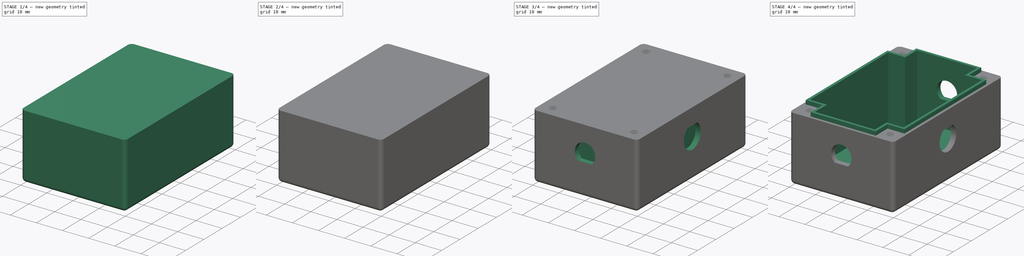
[diagram: build sequence overview — one tinted view per stage of 4, left to right]
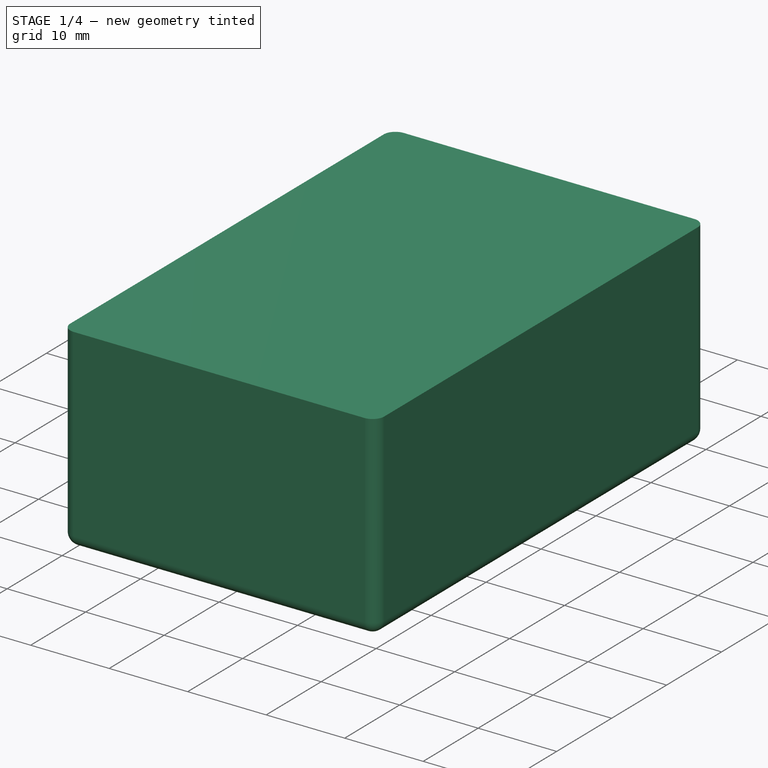
[diagram: stage 1 of 4 — iso view after this stage's code; geometry added in this stage tinted green]
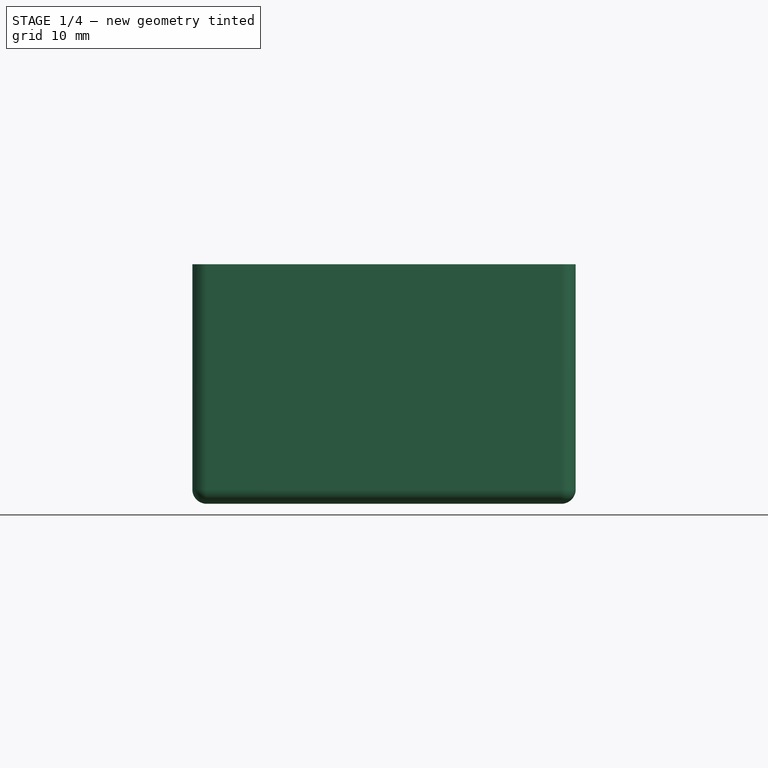
[diagram: stage 1 of 4 — front view after this stage's code; geometry added in this stage tinted green]
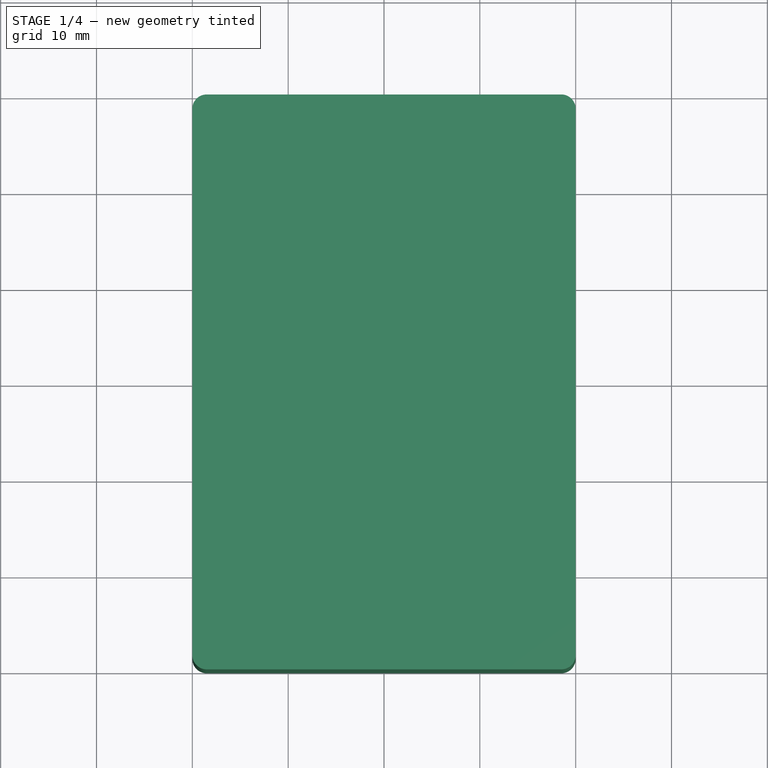
[diagram: stage 1 of 4 — top view after this stage's code; geometry added in this stage tinted green]
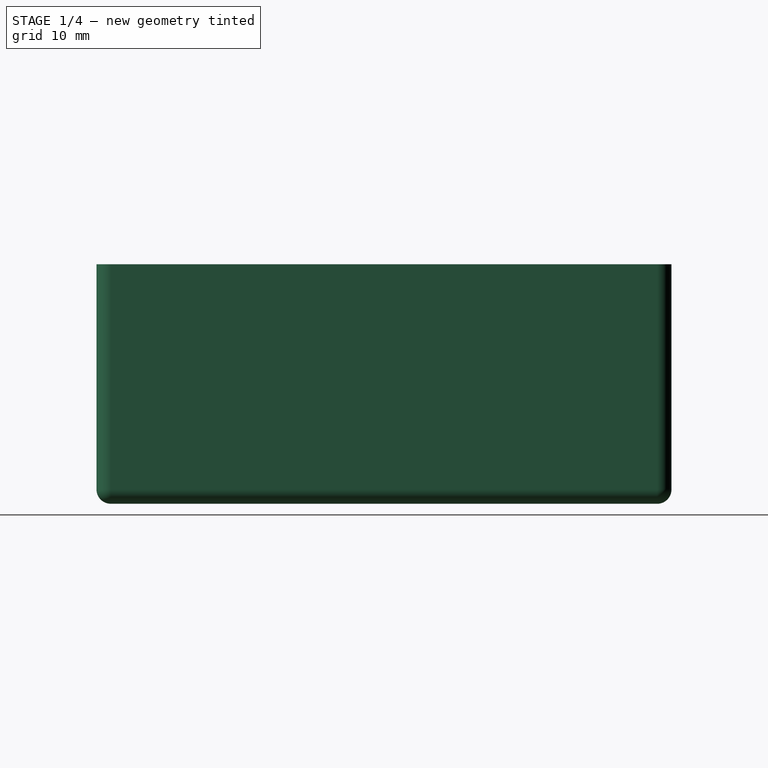
[diagram: stage 1 of 4 — right view after this stage's code; geometry added in this stage tinted green]
FCSTD DOCUMENT  (FreeCAD 0.18R16131 (Git))
Label: QRPDoubletAntennaBody
License: All rights reserved
LicenseURL: http://en.wikipedia.org/wiki/All_rights_reserved
objects: Sketcher::SketchObject×15, Part::FeaturePython×4, PartDesign::Pocket×4, PartDesign::Pad×2, PartDesign::Fillet×1, PartDesign::Boolean×1, PartDesign::Body×1
note: 34 computed .brp shape members not serialized (recipe doc carries the construction recipe); baked Part::Feature solids carry a one-line shape summary decoded from their .brp

FEATURE [Sketcher::SketchObject] CopySketch002
  Placement = pos=(0,0,30) rot=(0,0,1;0rad)
  sketch-geometry (13):
    g0: LineSegment StartX=-13.5 StartY=29 StartZ=0 EndX=13.5 EndY=29 EndZ=0
    g1: LineSegment StartX=19 StartY=23.5 StartZ=0 EndX=19 EndY=-23.5 EndZ=0
    g2: LineSegment StartX=13.5 StartY=-29 StartZ=0 EndX=-13.5 EndY=-29 EndZ=0
    g3: LineSegment StartX=-19 StartY=-23.5 StartZ=0 EndX=-19 EndY=23.5 EndZ=0
    g4: Circle [constr] CenterX=16.5 CenterY=26.5 CenterZ=0 NormalX=0 NormalY=0 NormalZ=1 AngleXU=0 Radius=1.8
    g5: LineSegment StartX=13.5 StartY=29 StartZ=0 EndX=13.5 EndY=23.5 EndZ=0
    g6: LineSegment StartX=13.5 StartY=23.5 StartZ=0 EndX=19 EndY=23.5 EndZ=0
    g7: LineSegment StartX=19 StartY=-23.5 StartZ=0 EndX=13.5 EndY=-23.5 EndZ=0
    g8: LineSegment StartX=13.5 StartY=-23.5 StartZ=0 EndX=13.5 EndY=-29 EndZ=0
    g9: LineSegment StartX=-13.5 StartY=-29 StartZ=0 EndX=-13.5 EndY=-23.5 EndZ=0
    g10: LineSegment StartX=-13.5 StartY=-23.5 StartZ=0 EndX=-19 EndY=-23.5 EndZ=0
    g11: LineSegment StartX=-19 StartY=23.5 StartZ=0 EndX=-13.5 EndY=23.5 EndZ=0
    g12: LineSegment StartX=-13.5 StartY=23.5 StartZ=0 EndX=-13.5 EndY=29 EndZ=0
  constraints (28):
    c: Diameter(g4) = 3.6
    c: Symmetric(g0,g2,g-1)
    c: Symmetric(g3,g1,g-2)
    c: Symmetric(g3,g1,g-2)
    c: Symmetric(g0,g2,g-1)
    c: Symmetric(g0,g0,g-2)
    c: Symmetric(g3,g3,g-1)
    c: Coincident(g0,g5)
    c: Coincident(g5,g6)
    c: Coincident(g6,g1)
    c: Coincident(g1,g7)
    c: Horizontal(g7)
    c: Coincident(g7,g8)
    c: Coincident(g8,g2)
    c: Coincident(g2,g9)
    c: Vertical(g9)
    c: Coincident(g9,g10)
    c: Coincident(g10,g3)
    c: Coincident(g3,g11)
    c: Coincident(g11,g12)
    c: Coincident(g12,g0)
    c: Horizontal(g10)
    c: Horizontal(g6)
    c: Vertical(g5)
    c: Vertical(g12)
    c: Horizontal(g11)
    c: Equal(g10,g9)
    c: Equal(g8,g7)
FEATURE [Sketcher::SketchObject] Sketch003  label="Body Sketch"
  MapMode = 5
  Support = -> [XY_Plane]
  sketch-geometry (4):
    g0: LineSegment StartX=-20 StartY=30 StartZ=0 EndX=20 EndY=30 EndZ=0
    g1: LineSegment StartX=20 StartY=30 StartZ=0 EndX=20 EndY=-30 EndZ=0
    g2: LineSegment StartX=20 StartY=-30 StartZ=0 EndX=-20 EndY=-30 EndZ=0
    g3: LineSegment StartX=-20 StartY=-30 StartZ=0 EndX=-20 EndY=30 EndZ=0
  constraints (10):
    c: Coincident(g0,g1)
    c: Coincident(g1,g2)
    c: Coincident(g2,g3)
    c: Coincident(g3,g0)
    c: Horizontal(g2)
    c: Vertical(g1)
    c: Symmetric(g0,g0,g-2)
    c: Symmetric(g0,g2,g-1)
    c: DistanceX(g-2,g0) = -20
    c: DistanceY(g-1,g2) = -30
FEATURE [Sketcher::SketchObject] CopySketch003  label="Main Body Sketch"
  sketch-geometry (4):
    g0: LineSegment StartX=-20 StartY=30 StartZ=0 EndX=20 EndY=30 EndZ=0
    g1: LineSegment StartX=20 StartY=30 StartZ=0 EndX=20 EndY=-30 EndZ=0
    g2: LineSegment StartX=20 StartY=-30 StartZ=0 EndX=-20 EndY=-30 EndZ=0
    g3: LineSegment StartX=-20 StartY=-30 StartZ=0 EndX=-20 EndY=30 EndZ=0
  constraints (10):
    c: Coincident(g0,g1)
    c: Coincident(g1,g2)
    c: Coincident(g2,g3)
    c: Coincident(g3,g0)
    c: Horizontal(g2)
    c: Vertical(g1)
    c: Symmetric(g0,g0,g-2)
    c: Symmetric(g0,g2,g-1)
    c: DistanceX(g-2,g0) = -20
    c: DistanceY(g-1,g2) = -30
FEATURE [PartDesign::Pad] Pad  label="Main Body"
  Length = 25
  Length2 = 100
  Profile = -> CopySketch003
  Type = 0
FEATURE [PartDesign::Fillet] Fillet
  Base = -> Pad [Face5,Edge2,Edge5,Edge8,Edge1]
  BaseFeature = -> Pad
  Radius = 1.5
FEATURE [Sketcher::SketchObject] CopySketch002001  label="CopySketch003"
  ExternalGeometry = -> [Sketch003]
  Placement = pos=(0,0,30) rot=(0,0,1;0rad)
  sketch-geometry (13):
    g0: LineSegment StartX=-13.5 StartY=29 StartZ=0 EndX=13.5 EndY=29 EndZ=0
    g1: LineSegment StartX=19 StartY=23.5 StartZ=0 EndX=19 EndY=-23.5 EndZ=0
    g2: LineSegment StartX=13.5 StartY=-29 StartZ=0 EndX=-13.5 EndY=-29 EndZ=0
    g3: LineSegment StartX=-19 StartY=-23.5 StartZ=0 EndX=-19 EndY=23.5 EndZ=0
    g4: Circle [constr] CenterX=15.5 CenterY=25.5 CenterZ=0 NormalX=0 NormalY=0 NormalZ=1 AngleXU=0 Radius=1.8
    g5: LineSegment StartX=13.5 StartY=29 StartZ=0 EndX=13.5 EndY=23.5 EndZ=0
    g6: LineSegment StartX=13.5 StartY=23.5 StartZ=0 EndX=19 EndY=23.5 EndZ=0
    g7: LineSegment StartX=19 StartY=-23.5 StartZ=0 EndX=13.5 EndY=-23.5 EndZ=0
    g8: LineSegment StartX=13.5 StartY=-23.5 StartZ=0 EndX=13.5 EndY=-29 EndZ=0
    g9: LineSegment StartX=-13.5 StartY=-29 StartZ=0 EndX=-13.5 EndY=-23.5 EndZ=0
    g10: LineSegment StartX=-13.5 StartY=-23.5 StartZ=0 EndX=-19 EndY=-23.5 EndZ=0
    g11: LineSegment StartX=-19 StartY=23.5 StartZ=0 EndX=-13.5 EndY=23.5 EndZ=0
    g12: LineSegment StartX=-13.5 StartY=23.5 StartZ=0 EndX=-13.5 EndY=29 EndZ=0
  constraints (33):
    c: Diameter(g4) = 3.6
    c: Symmetric(g0,g2,g-1)
    c: Symmetric(g3,g1,g-2)
    c: Symmetric(g3,g1,g-2)
    c: Symmetric(g0,g2,g-1)
    c: Symmetric(g0,g0,g-2)
    c: Symmetric(g3,g3,g-1)
    c: Coincident(g0,g5)
    c: Coincident(g5,g6)
    c: Coincident(g6,g1)
    c: Coincident(g1,g7)
    c: Horizontal(g7)
    c: Coincident(g7,g8)
    c: Coincident(g8,g2)
    c: Coincident(g2,g9)
    c: Vertical(g9)
    c: Coincident(g9,g10)
    c: Coincident(g10,g3)
    c: Coincident(g3,g11)
    c: Coincident(g11,g12)
    c: Coincident(g12,g0)
    c: Horizontal(g10)
    c: Horizontal(g6)
    c: Vertical(g5)
    c: Vertical(g12)
    c: Horizontal(g11)
    c: Equal(g10,g9)
    c: Equal(g8,g7)
    c: Distance(g9,g-3) = 6.5
    c: Distance(g9,g-4) = 6.5
    c: Distance(g4,g-5) = 4.5
    c: Distance(g4,g-6) = 4.5
    c: Distance(g3,g9) = 5.5
FEATURE [Sketcher::SketchObject] CopySketch004
  Placement = pos=(0,0,31.5) rot=(0,0,1;0rad)
  sketch-geometry (13):
    g0: LineSegment StartX=-12.5 StartY=28 StartZ=0 EndX=12.5 EndY=28 EndZ=0
    g1: LineSegment StartX=18 StartY=22.5 StartZ=0 EndX=18 EndY=-22.5 EndZ=0
    g2: LineSegment StartX=12.5 StartY=-28 StartZ=0 EndX=-12.5 EndY=-28 EndZ=0
    g3: LineSegment StartX=-18 StartY=-22.5 StartZ=0 EndX=-18 EndY=22.5 EndZ=0
    g4: Circle [constr] CenterX=16.5 CenterY=26.5 CenterZ=0 NormalX=0 NormalY=0 NormalZ=1 AngleXU=0 Radius=1.8
    g5: LineSegment StartX=12.5 StartY=28 StartZ=0 EndX=12.5 EndY=22.5 EndZ=0
    g6: LineSegment StartX=12.5 StartY=22.5 StartZ=0 EndX=18 EndY=22.5 EndZ=0
    g7: LineSegment StartX=18 StartY=-22.5 StartZ=0 EndX=12.5 EndY=-22.5 EndZ=0
    g8: LineSegment StartX=12.5 StartY=-22.5 StartZ=0 EndX=12.5 EndY=-28 EndZ=0
    g9: LineSegment StartX=-12.5 StartY=-28 StartZ=0 EndX=-12.5 EndY=-22.5 EndZ=0
    g10: LineSegment StartX=-12.5 StartY=-22.5 StartZ=0 EndX=-18 EndY=-22.5 EndZ=0
    g11: LineSegment StartX=-18 StartY=22.5 StartZ=0 EndX=-12.5 EndY=22.5 EndZ=0
    g12: LineSegment StartX=-12.5 StartY=22.5 StartZ=0 EndX=-12.5 EndY=28 EndZ=0
  constraints (28):
    c: Diameter(g4) = 3.6
    c: Symmetric(g0,g2,g-1)
    c: Symmetric(g3,g1,g-2)
    c: Symmetric(g3,g1,g-2)
    c: Symmetric(g0,g2,g-1)
    c: Symmetric(g0,g0,g-2)
    c: Symmetric(g3,g3,g-1)
    c: Coincident(g0,g5)
    c: Coincident(g5,g6)
    c: Coincident(g6,g1)
    c: Coincident(g1,g7)
    c: Horizontal(g7)
    c: Coincident(g7,g8)
    c: Coincident(g8,g2)
    c: Coincident(g2,g9)
    c: Vertical(g9)
    c: Coincident(g9,g10)
    c: Coincident(g10,g3)
    c: Coincident(g3,g11)
    c: Coincident(g11,g12)
    c: Coincident(g12,g0)
    c: Horizontal(g10)
    c: Horizontal(g6)
    c: Vertical(g5)
    c: Vertical(g12)
    c: Horizontal(g11)
    c: Equal(g10,g9)
    c: Equal(g8,g7)
FEATURE [Sketcher::SketchObject] Sketch005  label="Banana Plug 1"
  MapMode = 5
  Placement = pos=(0,-30,0) rot=(1,0,0;1.5708rad)
  sketch-geometry (2):
    g0: ArcOfCircle CenterX=0 CenterY=15 CenterZ=0 NormalX=0 NormalY=0 NormalZ=1 AngleXU=0 Radius=3.9 StartAngle=5.41052 EndAngle=10.2974
    g1: LineSegment StartX=-2.50687 StartY=12.0124 StartZ=0 EndX=2.50687 EndY=12.0124 EndZ=0
  constraints (7):
    c: PointOnObject(g0,g-2)
    c: Radius(g0) = 3.9
    c: Horizontal(g0,g0)
    c: Angle(g0) = 4.88692
    c: DistanceY(g-1,g0) = 15
    c: Coincident(g1,g0)
    c: Coincident(g1,g0)
FEATURE [Sketcher::SketchObject] Sketch007  label="BNC1"
  MapMode = 5
  Placement = pos=(20,0,0) rot=(0.57735,0.57735,0.57735;2.0944rad)
  sketch-geometry (2):
    g0: ArcOfCircle CenterX=0 CenterY=15 CenterZ=0 NormalX=0 NormalY=0 NormalZ=1 AngleXU=0 Radius=4.6 StartAngle=2.18166 EndAngle=7.24312
    g1: LineSegment StartX=-2.63845 StartY=18.7681 StartZ=0 EndX=2.63845 EndY=18.7681 EndZ=0
  constraints (7):
    c: PointOnObject(g0,g-2)
    c: Radius(g0) = 4.6
    c: Angle(g0) = 5.06145
    c: DistanceY(g-1,g0) = 15
    c: Horizontal(g0,g0)
    c: Coincident(g1,g0)
    c: Coincident(g1,g0)
FEATURE [Part::FeaturePython] ScrewTap003  label="M3x10.0-ScrewTap012"  # Fasteners workbench fastener (typed FeaturePython)
  Placement = pos=(-15.5,-25.5,25) rot=(0,0,1;0rad)
  diameter = 4
  invert = false
  length = 10
  matchOuter = false
  offset = 0
  thread = true
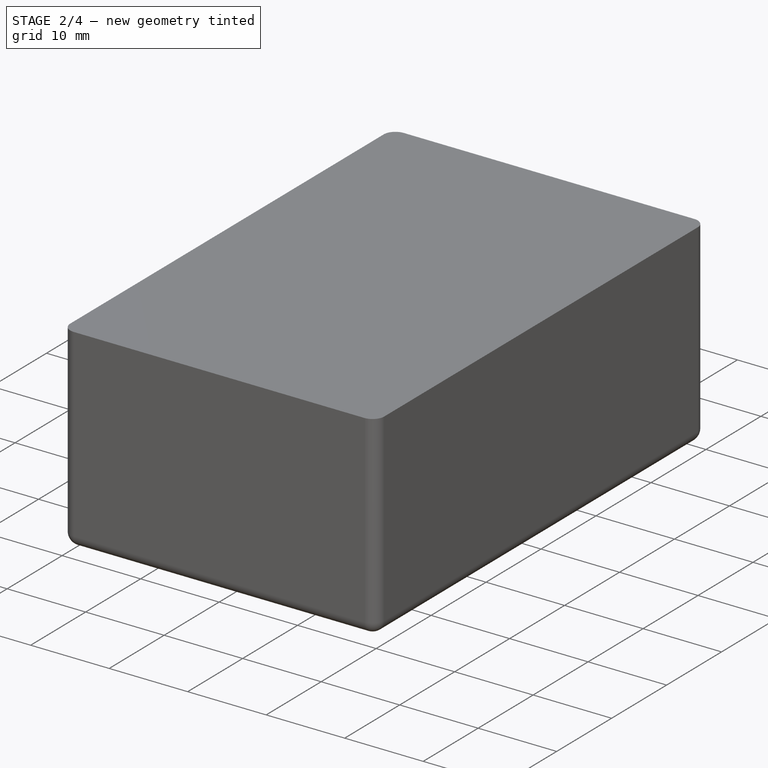
[diagram: stage 2 of 4 — iso view after this stage's code; geometry added in this stage tinted green]
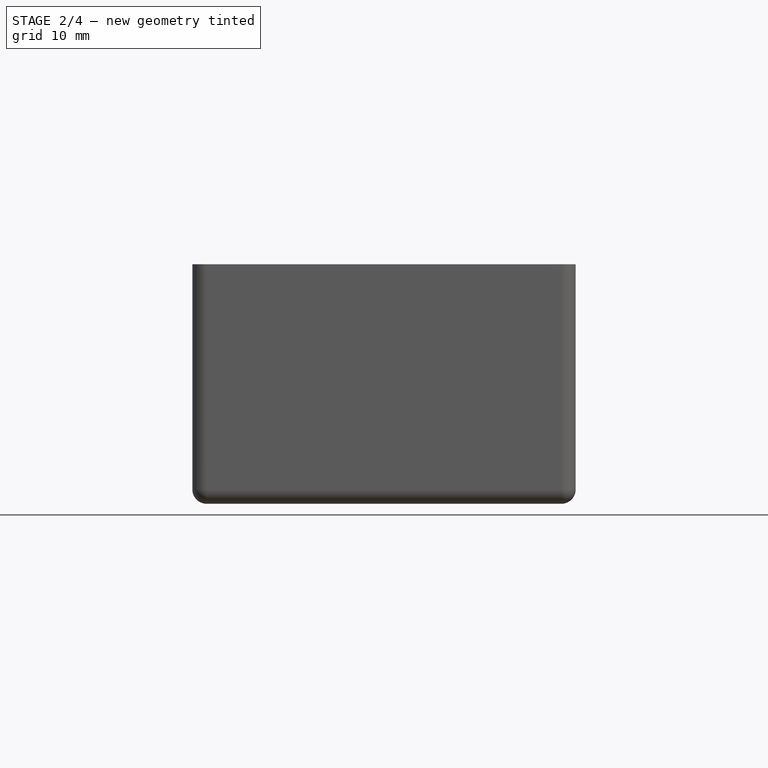
[diagram: stage 2 of 4 — front view after this stage's code; geometry added in this stage tinted green]
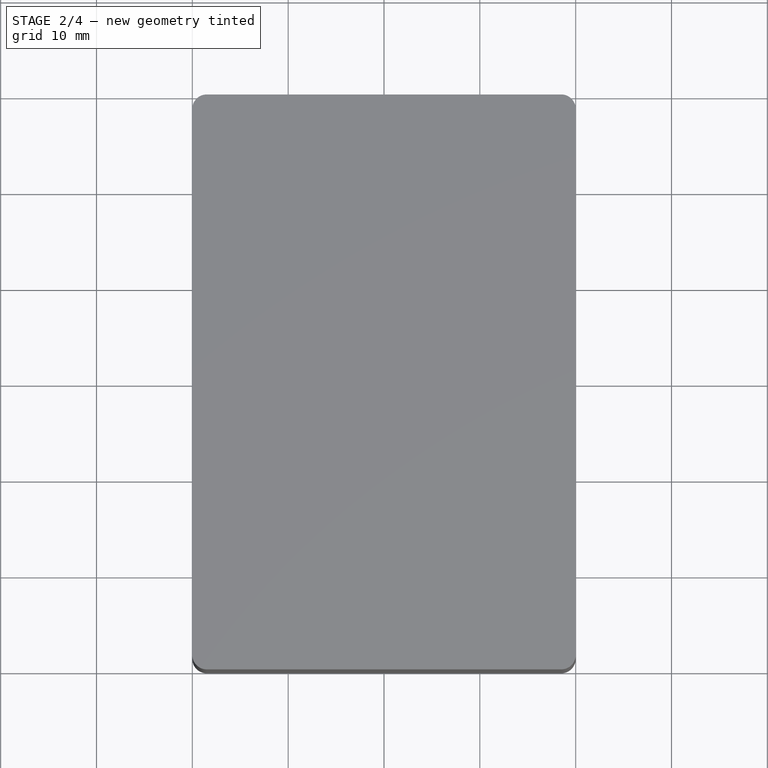
[diagram: stage 2 of 4 — top view after this stage's code; geometry added in this stage tinted green]
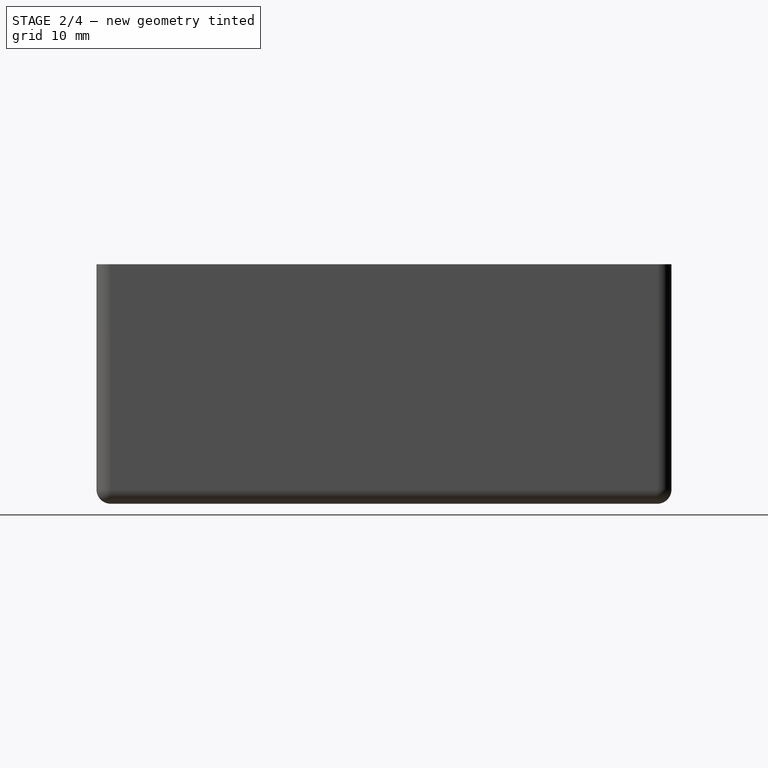
[diagram: stage 2 of 4 — right view after this stage's code; geometry added in this stage tinted green]
FEATURE [Sketcher::SketchObject] Sketch
  MapMode = 5
  Support = -> [XY_Plane]
  sketch-geometry (4):
    g0: LineSegment StartX=-20 StartY=30 StartZ=0 EndX=20 EndY=30 EndZ=0
    g1: LineSegment StartX=20 StartY=30 StartZ=0 EndX=20 EndY=-30 EndZ=0
    g2: LineSegment StartX=20 StartY=-30 StartZ=0 EndX=-20 EndY=-30 EndZ=0
    g3: LineSegment StartX=-20 StartY=-30 StartZ=0 EndX=-20 EndY=30 EndZ=0
  constraints (10):
    c: Coincident(g0,g1)
    c: Coincident(g1,g2)
    c: Coincident(g2,g3)
    c: Coincident(g3,g0)
    c: Horizontal(g2)
    c: Vertical(g1)
    c: Symmetric(g0,g0,g-2)
    c: Symmetric(g0,g2,g-1)
    c: DistanceX(g-2,g0) = -20
    c: DistanceY(g-1,g2) = -30
FEATURE [Part::FeaturePython] ScrewTap  label="M3x10.0-ScrewTap"  # Fasteners workbench fastener (typed FeaturePython)
  Placement = pos=(15.5,25.5,25) rot=(0,0,1;0rad)
  diameter = 4
  invert = false
  length = 10
  matchOuter = false
  offset = 0
  thread = true
FEATURE [Part::FeaturePython] ScrewTap001  label="M3x10.0-ScrewTap011"  # Fasteners workbench fastener (typed FeaturePython)
  Placement = pos=(-15.5,25.5,25) rot=(0,0,1;0rad)
  diameter = 4
  invert = false
  length = 10
  matchOuter = false
  offset = 0
  thread = true
FEATURE [Part::FeaturePython] ScrewTap002  label="M3x10.0-ScrewTap010"  # Fasteners workbench fastener (typed FeaturePython)
  Placement = pos=(15.5,-25.5,25) rot=(0,0,1;0rad)
  diameter = 4
  invert = false
  length = 10
  matchOuter = false
  offset = 0
  thread = true
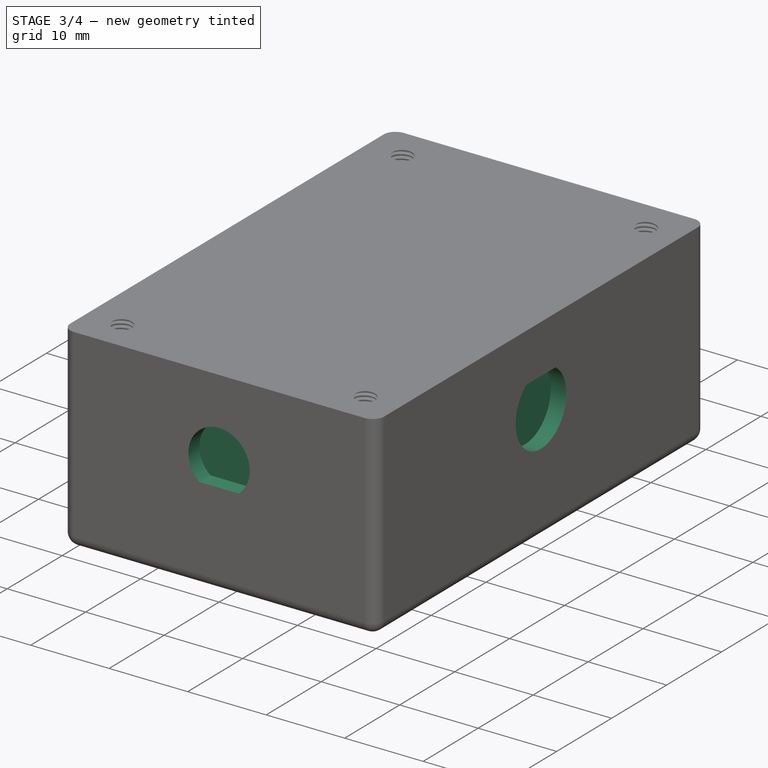
[diagram: stage 3 of 4 — iso view after this stage's code; geometry added in this stage tinted green]
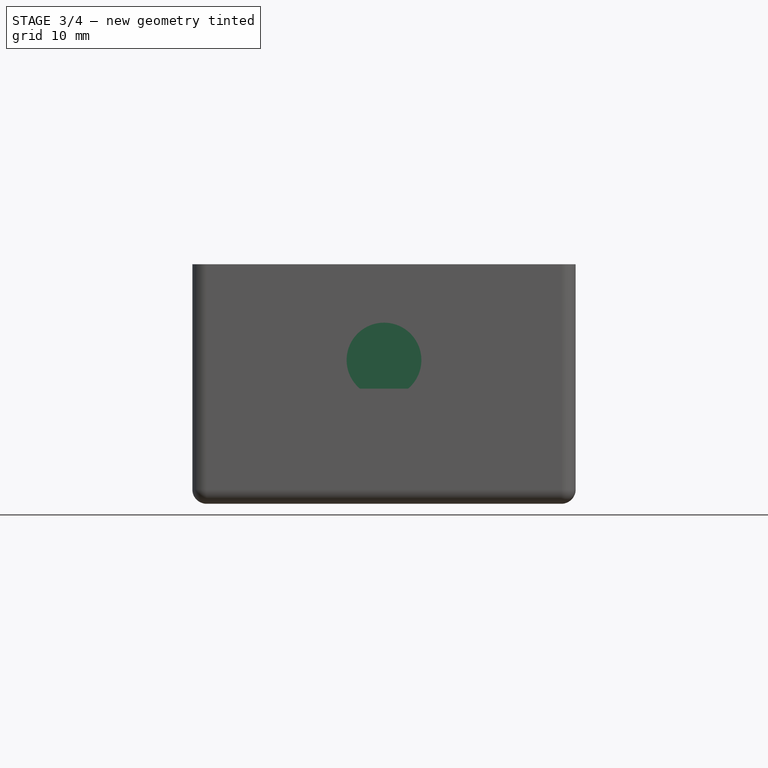
[diagram: stage 3 of 4 — front view after this stage's code; geometry added in this stage tinted green]
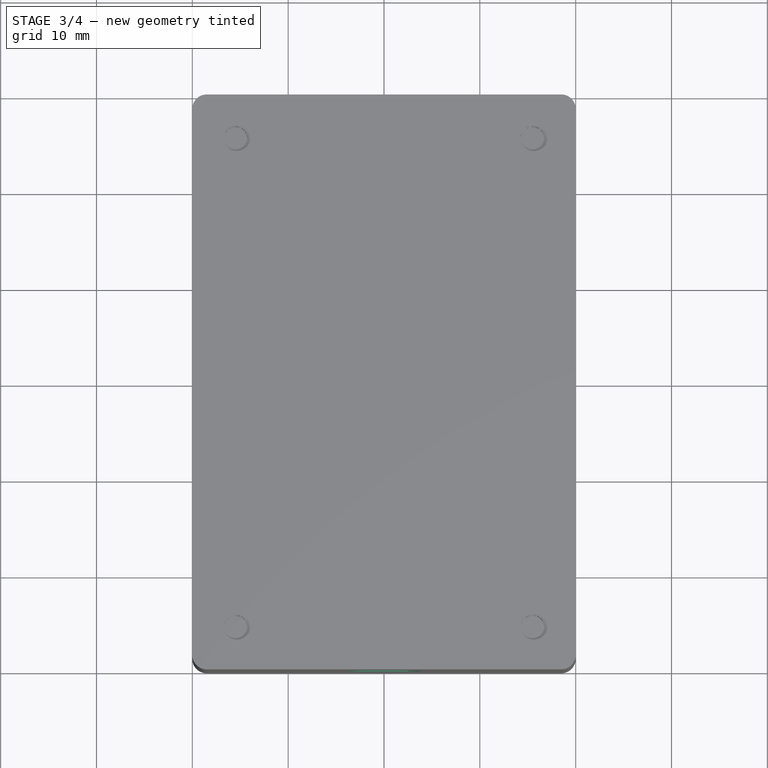
[diagram: stage 3 of 4 — top view after this stage's code; geometry added in this stage tinted green]
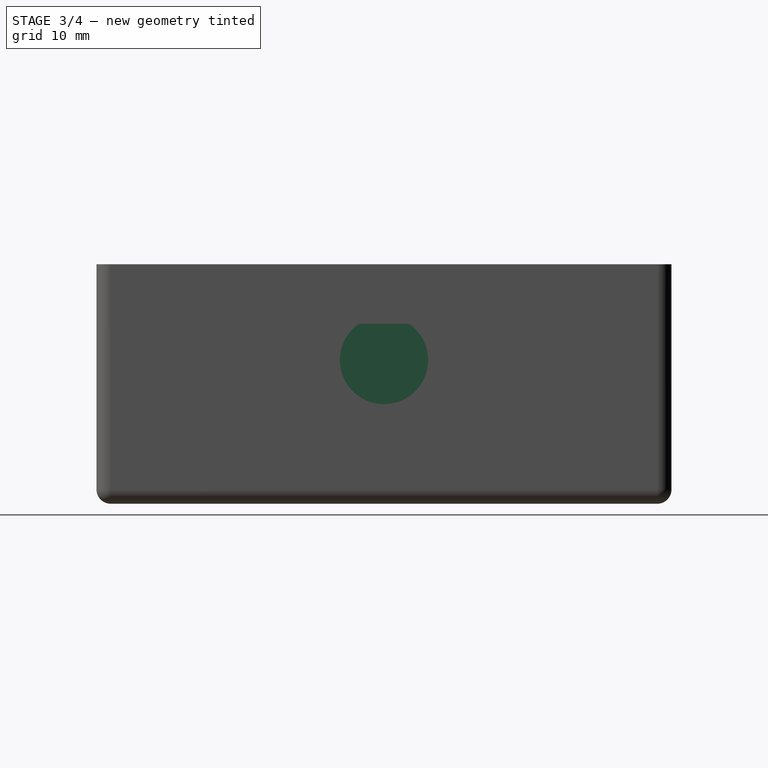
[diagram: stage 3 of 4 — right view after this stage's code; geometry added in this stage tinted green]
FEATURE [PartDesign::Boolean] Boolean
  BaseFeature = -> Fillet
  Group = -> [ScrewTap,ScrewTap001,ScrewTap002,ScrewTap003]
  Type = 1
FEATURE [PartDesign::Pocket] Pocket001
  BaseFeature = -> Boolean
  Length = 2
  Length2 = 100
  Profile = -> Sketch005
  Type = 0
FEATURE [Sketcher::SketchObject] Sketch006  label="Banana Plug 2"
  MapMode = 5
  Placement = pos=(0,30,0) rot=(0,0.707107,0.707107;3.14159rad)
  Support = -> [Pocket001]
  sketch-geometry (2):
    g0: ArcOfCircle CenterX=0 CenterY=15 CenterZ=0 NormalX=0 NormalY=0 NormalZ=1 AngleXU=0 Radius=3.9 StartAngle=5.41052 EndAngle=10.2974
    g1: LineSegment StartX=-2.50687 StartY=12.0124 StartZ=0 EndX=2.50687 EndY=12.0124 EndZ=0
  constraints (7):
    c: PointOnObject(g0,g-2)
    c: Horizontal(g0,g0)
    c: DistanceY(g-1,g0) = 15
    c: Radius(g0) = 3.9
    c: Angle(g0) = 4.88692
    c: Coincident(g1,g0)
    c: Coincident(g1,g0)
FEATURE [PartDesign::Pocket] Pocket003
  BaseFeature = -> Pocket001
  Length = 2
  Length2 = 100
  Profile = -> Sketch007
  Type = 0
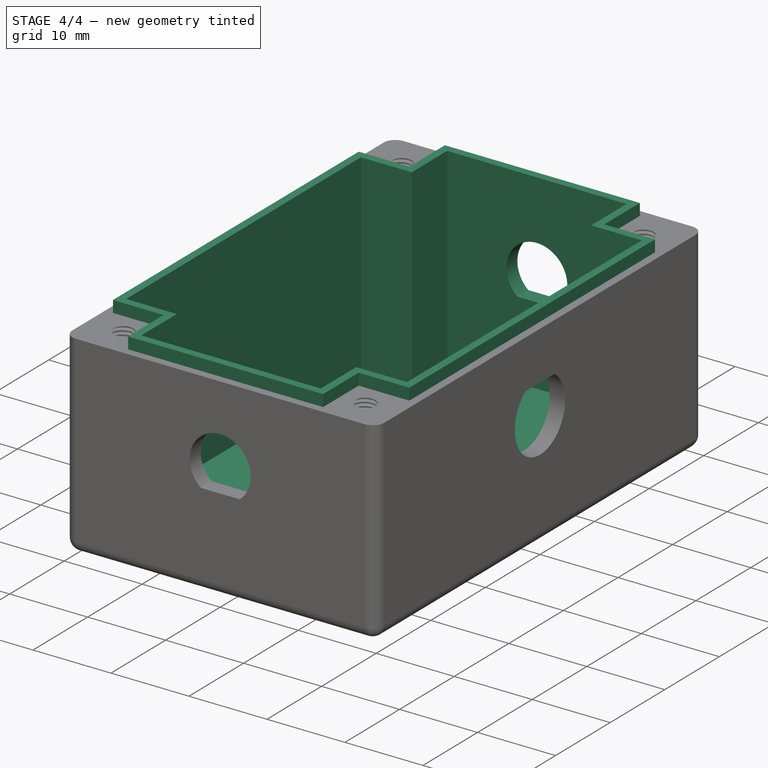
[diagram: stage 4 of 4 — iso view after this stage's code; geometry added in this stage tinted green]
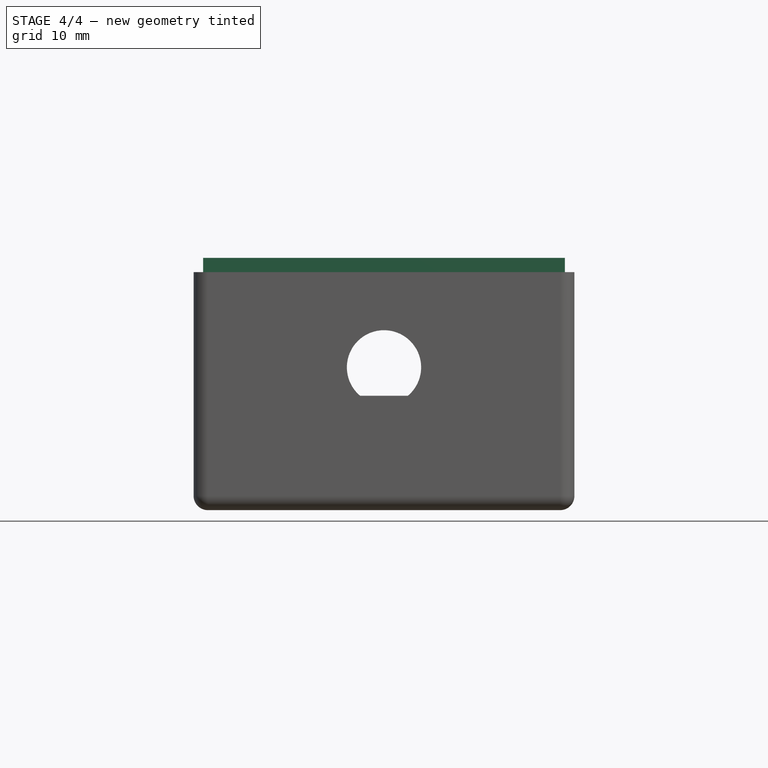
[diagram: stage 4 of 4 — front view after this stage's code; geometry added in this stage tinted green]
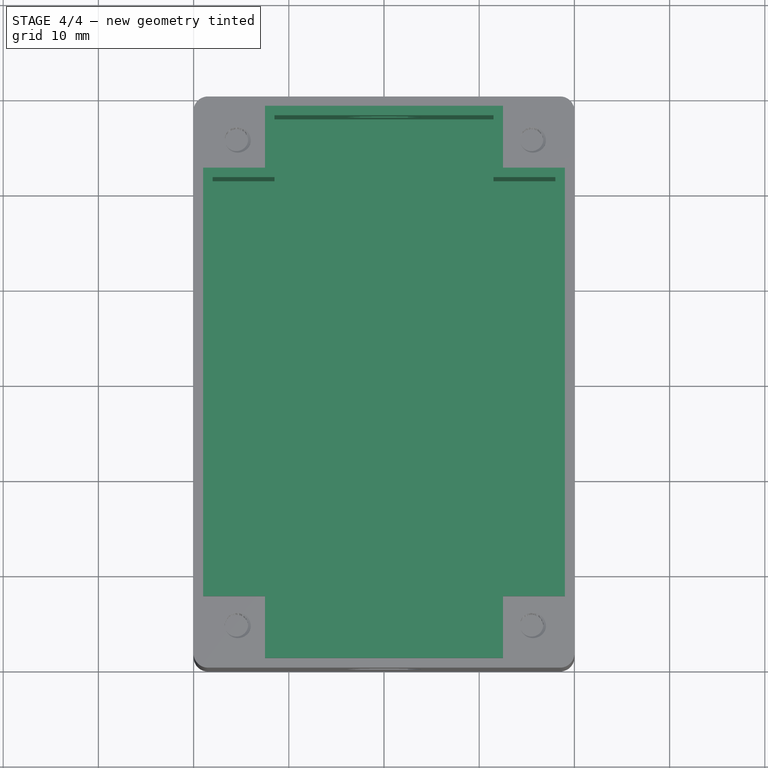
[diagram: stage 4 of 4 — top view after this stage's code; geometry added in this stage tinted green]
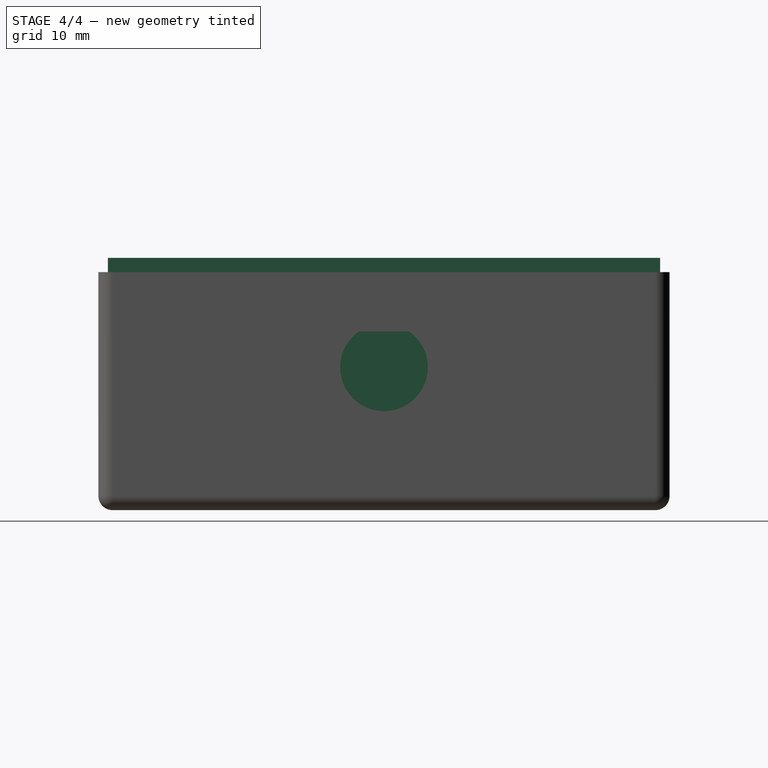
[diagram: stage 4 of 4 — right view after this stage's code; geometry added in this stage tinted green]
FEATURE [Sketcher::SketchObject] Sketch008
  MapMode = 5
  Placement = pos=(0,0,25) rot=(0,0,1;0rad)
  Support = -> [Boolean]
FEATURE [Sketcher::SketchObject] Sketch009  label="BNC Sketch"
  MapMode = 5
  Placement = pos=(0,30,0) rot=(0,0.707107,0.707107;3.14159rad)
  Support = -> [Pocket001]
  sketch-geometry (2):
    g0: ArcOfCircle CenterX=0 CenterY=15 CenterZ=0 NormalX=0 NormalY=0 NormalZ=1 AngleXU=0 Radius=4.1 StartAngle=5.41052 EndAngle=10.2974
    g1: LineSegment StartX=-2.63543 StartY=11.8592 StartZ=0 EndX=2.63543 EndY=11.8592 EndZ=0
  constraints (7):
    c: PointOnObject(g0,g-2)
    c: Horizontal(g0,g0)
    c: DistanceY(g-1,g0) = 15
    c: Radius(g0) = 4.1
    c: Angle(g0) = 4.88692
    c: Coincident(g1,g0)
    c: Coincident(g1,g0)
FEATURE [Sketcher::SketchObject] CopySketch002003  label="Lip Sketch"
  MapMode = 5
  Placement = pos=(0,0,25) rot=(0,0,1;0rad)
  Support = -> [Pocket003]
  sketch-geometry (12):
    g0: LineSegment StartX=-12.5 StartY=29 StartZ=0 EndX=12.5 EndY=29 EndZ=0
    g1: LineSegment StartX=19 StartY=22.5 StartZ=0 EndX=19 EndY=-22.5 EndZ=0
    g2: LineSegment StartX=12.5 StartY=-29 StartZ=0 EndX=-12.5 EndY=-29 EndZ=0
    g3: LineSegment StartX=-19 StartY=-22.5 StartZ=0 EndX=-19 EndY=22.5 EndZ=0
    g4: LineSegment StartX=12.5 StartY=29 StartZ=0 EndX=12.5 EndY=22.5 EndZ=0
    g5: LineSegment StartX=12.5 StartY=22.5 StartZ=0 EndX=19 EndY=22.5 EndZ=0
    g6: LineSegment StartX=19 StartY=-22.5 StartZ=0 EndX=12.5 EndY=-22.5 EndZ=0
    g7: LineSegment StartX=12.5 StartY=-22.5 StartZ=0 EndX=12.5 EndY=-29 EndZ=0
    g8: LineSegment StartX=-12.5 StartY=-29 StartZ=0 EndX=-12.5 EndY=-22.5 EndZ=0
    g9: LineSegment StartX=-12.5 StartY=-22.5 StartZ=0 EndX=-19 EndY=-22.5 EndZ=0
    g10: LineSegment StartX=-19 StartY=22.5 StartZ=0 EndX=-12.5 EndY=22.5 EndZ=0
    g11: LineSegment StartX=-12.5 StartY=22.5 StartZ=0 EndX=-12.5 EndY=29 EndZ=0
  constraints (30):
    c: Symmetric(g0,g2,g-1)
    c: Symmetric(g3,g1,g-2)
    c: Symmetric(g3,g1,g-2)
    c: Symmetric(g0,g2,g-1)
    c: Symmetric(g0,g0,g-2)
    c: Symmetric(g3,g3,g-1)
    c: Coincident(g0,g4)
    c: Coincident(g4,g5)
    c: Coincident(g5,g1)
    c: Coincident(g1,g6)
    c: Horizontal(g6)
    c: Coincident(g6,g7)
    c: Coincident(g7,g2)
    c: Coincident(g2,g8)
    c: Vertical(g8)
    c: Coincident(g8,g9)
    c: Coincident(g9,g3)
    c: Coincident(g3,g10)
    c: Coincident(g10,g11)
    c: Coincident(g11,g0)
    c: Horizontal(g9)
    c: Horizontal(g5)
    c: Vertical(g11)
    c: Equal(g9,g8)
    c: Equal(g7,g6)
    c: DistanceX(g-2,g1) = 19
    c: Equal(g10,g11)
    c: Equal(g4,g5)
    c: Distance(g4,g1) = 6.5
    c: DistanceY(g-1,g2) = -29
FEATURE [Sketcher::SketchObject] CopyCopySketch002003
  Placement = pos=(0,0,25) rot=(0,0,1;0rad)
  sketch-geometry (12):
    g0: LineSegment StartX=-12.5 StartY=29 StartZ=0 EndX=12.5 EndY=29 EndZ=0
    g1: LineSegment StartX=19 StartY=22.5 StartZ=0 EndX=19 EndY=-22.5 EndZ=0
    g2: LineSegment StartX=12.5 StartY=-29 StartZ=0 EndX=-12.5 EndY=-29 EndZ=0
    g3: LineSegment StartX=-19 StartY=-22.5 StartZ=0 EndX=-19 EndY=22.5 EndZ=0
    g4: LineSegment StartX=12.5 StartY=29 StartZ=0 EndX=12.5 EndY=22.5 EndZ=0
    g5: LineSegment StartX=12.5 StartY=22.5 StartZ=0 EndX=19 EndY=22.5 EndZ=0
    g6: LineSegment StartX=19 StartY=-22.5 StartZ=0 EndX=12.5 EndY=-22.5 EndZ=0
    g7: LineSegment StartX=12.5 StartY=-22.5 StartZ=0 EndX=12.5 EndY=-29 EndZ=0
    g8: LineSegment StartX=-12.5 StartY=-29 StartZ=0 EndX=-12.5 EndY=-22.5 EndZ=0
    g9: LineSegment StartX=-12.5 StartY=-22.5 StartZ=0 EndX=-19 EndY=-22.5 EndZ=0
    g10: LineSegment StartX=-19 StartY=22.5 StartZ=0 EndX=-12.5 EndY=22.5 EndZ=0
    g11: LineSegment StartX=-12.5 StartY=22.5 StartZ=0 EndX=-12.5 EndY=29 EndZ=0
  constraints (30):
    c: Symmetric(g0,g2,g-1)
    c: Symmetric(g3,g1,g-2)
    c: Symmetric(g3,g1,g-2)
    c: Symmetric(g0,g2,g-1)
    c: Symmetric(g0,g0,g-2)
    c: Symmetric(g3,g3,g-1)
    c: Coincident(g0,g4)
    c: Coincident(g4,g5)
    c: Coincident(g5,g1)
    c: Coincident(g1,g6)
    c: Horizontal(g6)
    c: Coincident(g6,g7)
    c: Coincident(g7,g2)
    c: Coincident(g2,g8)
    c: Vertical(g8)
    c: Coincident(g8,g9)
    c: Coincident(g9,g3)
    c: Coincident(g3,g10)
    c: Coincident(g10,g11)
    c: Coincident(g11,g0)
    c: Horizontal(g9)
    c: Horizontal(g5)
    c: Vertical(g11)
    c: Equal(g9,g8)
    c: Equal(g7,g6)
    c: DistanceX(g-2,g1) = 19
    c: Equal(g10,g11)
    c: Equal(g4,g5)
    c: Distance(g4,g1) = 6.5
    c: DistanceY(g-1,g2) = -29
FEATURE [PartDesign::Pad] Pad001
  BaseFeature = -> Pocket003
  Length = 1.5
  Length2 = 100
  Profile = -> CopyCopySketch002003
  Type = 0
FEATURE [Sketcher::SketchObject] CopySketch002002  label="Interior Sketch"
  MapMode = 5
  Placement = pos=(0,0,26.5) rot=(0,0,1;0rad)
  Support = -> [Pad001]
  sketch-geometry (12):
    g0: LineSegment StartX=-11.5 StartY=28 StartZ=0 EndX=11.5 EndY=28 EndZ=0
    g1: LineSegment StartX=18 StartY=21.5 StartZ=0 EndX=18 EndY=-21.5 EndZ=0
    g2: LineSegment StartX=11.5 StartY=-28 StartZ=0 EndX=-11.5 EndY=-28 EndZ=0
    g3: LineSegment StartX=-18 StartY=-21.5 StartZ=0 EndX=-18 EndY=21.5 EndZ=0
    g4: LineSegment StartX=11.5 StartY=28 StartZ=0 EndX=11.5 EndY=21.5 EndZ=0
    g5: LineSegment StartX=11.5 StartY=21.5 StartZ=0 EndX=18 EndY=21.5 EndZ=0
    g6: LineSegment StartX=18 StartY=-21.5 StartZ=0 EndX=11.5 EndY=-21.5 EndZ=0
    g7: LineSegment StartX=11.5 StartY=-21.5 StartZ=0 EndX=11.5 EndY=-28 EndZ=0
    g8: LineSegment StartX=-11.5 StartY=-28 StartZ=0 EndX=-11.5 EndY=-21.5 EndZ=0
    g9: LineSegment StartX=-11.5 StartY=-21.5 StartZ=0 EndX=-18 EndY=-21.5 EndZ=0
    g10: LineSegment StartX=-18 StartY=21.5 StartZ=0 EndX=-11.5 EndY=21.5 EndZ=0
    g11: LineSegment StartX=-11.5 StartY=21.5 StartZ=0 EndX=-11.5 EndY=28 EndZ=0
  constraints (30):
    c: Symmetric(g0,g2,g-1)
    c: Symmetric(g3,g1,g-2)
    c: Symmetric(g3,g1,g-2)
    c: Symmetric(g0,g2,g-1)
    c: Symmetric(g0,g0,g-2)
    c: Symmetric(g3,g3,g-1)
    c: Coincident(g0,g4)
    c: Coincident(g4,g5)
    c: Coincident(g5,g1)
    c: Coincident(g1,g6)
    c: Horizontal(g6)
    c: Coincident(g6,g7)
    c: Coincident(g7,g2)
    c: Coincident(g2,g8)
    c: Vertical(g8)
    c: Coincident(g8,g9)
    c: Coincident(g9,g3)
    c: Coincident(g3,g10)
    c: Coincident(g10,g11)
    c: Coincident(g11,g0)
    c: Horizontal(g9)
    c: Horizontal(g5)
    c: Vertical(g11)
    c: Equal(g9,g8)
    c: Equal(g7,g6)
    c: DistanceX(g-2,g1) = 18
    c: Equal(g10,g11)
    c: Equal(g4,g5)
    c: Distance(g4,g1) = 6.5
    c: DistanceY(g-1,g2) = -28
FEATURE [Sketcher::SketchObject] CopyCopySketch002002  label="Interior"
  Placement = pos=(0,0,26.5) rot=(0,0,1;0rad)
  sketch-geometry (12):
    g0: LineSegment StartX=-11.5 StartY=28 StartZ=0 EndX=11.5 EndY=28 EndZ=0
    g1: LineSegment StartX=18 StartY=21.5 StartZ=0 EndX=18 EndY=-21.5 EndZ=0
    g2: LineSegment StartX=11.5 StartY=-28 StartZ=0 EndX=-11.5 EndY=-28 EndZ=0
    g3: LineSegment StartX=-18 StartY=-21.5 StartZ=0 EndX=-18 EndY=21.5 EndZ=0
    g4: LineSegment StartX=11.5 StartY=28 StartZ=0 EndX=11.5 EndY=21.5 EndZ=0
    g5: LineSegment StartX=11.5 StartY=21.5 StartZ=0 EndX=18 EndY=21.5 EndZ=0
    g6: LineSegment StartX=18 StartY=-21.5 StartZ=0 EndX=11.5 EndY=-21.5 EndZ=0
    g7: LineSegment StartX=11.5 StartY=-21.5 StartZ=0 EndX=11.5 EndY=-28 EndZ=0
    g8: LineSegment StartX=-11.5 StartY=-28 StartZ=0 EndX=-11.5 EndY=-21.5 EndZ=0
    g9: LineSegment StartX=-11.5 StartY=-21.5 StartZ=0 EndX=-18 EndY=-21.5 EndZ=0
    g10: LineSegment StartX=-18 StartY=21.5 StartZ=0 EndX=-11.5 EndY=21.5 EndZ=0
    g11: LineSegment StartX=-11.5 StartY=21.5 StartZ=0 EndX=-11.5 EndY=28 EndZ=0
  constraints (30):
    c: Symmetric(g0,g2,g-1)
    c: Symmetric(g3,g1,g-2)
    c: Symmetric(g3,g1,g-2)
    c: Symmetric(g0,g2,g-1)
    c: Symmetric(g0,g0,g-2)
    c: Symmetric(g3,g3,g-1)
    c: Coincident(g0,g4)
    c: Coincident(g4,g5)
    c: Coincident(g5,g1)
    c: Coincident(g1,g6)
    c: Horizontal(g6)
    c: Coincident(g6,g7)
    c: Coincident(g7,g2)
    c: Coincident(g2,g8)
    c: Vertical(g8)
    c: Coincident(g8,g9)
    c: Coincident(g9,g3)
    c: Coincident(g3,g10)
    c: Coincident(g10,g11)
    c: Coincident(g11,g0)
    c: Horizontal(g9)
    c: Horizontal(g5)
    c: Vertical(g11)
    c: Equal(g9,g8)
    c: Equal(g7,g6)
    c: DistanceX(g-2,g1) = 18
    c: Equal(g10,g11)
    c: Equal(g4,g5)
    c: Distance(g4,g1) = 6.5
    c: DistanceY(g-1,g2) = -28
FEATURE [PartDesign::Pocket] Pocket
  BaseFeature = -> Pad001
  Length = 24.5
  Length2 = 100
  Profile = -> CopyCopySketch002002
  Type = 0
FEATURE [PartDesign::Pocket] Pocket004
  BaseFeature = -> Pocket
  Length = 2
  Length2 = 100
  Profile = -> Sketch006
  Type = 0
FEATURE [PartDesign::Body] Body
  Group = -> [Sketch,Pad,Fillet,Boolean,Sketch005,Pocket001,Sketch006,Sketch007,Pocket003,Sketch008,Pad001,Pocket,Pocket004]
  Origin = -> Origin
  Tip = -> Pocket004
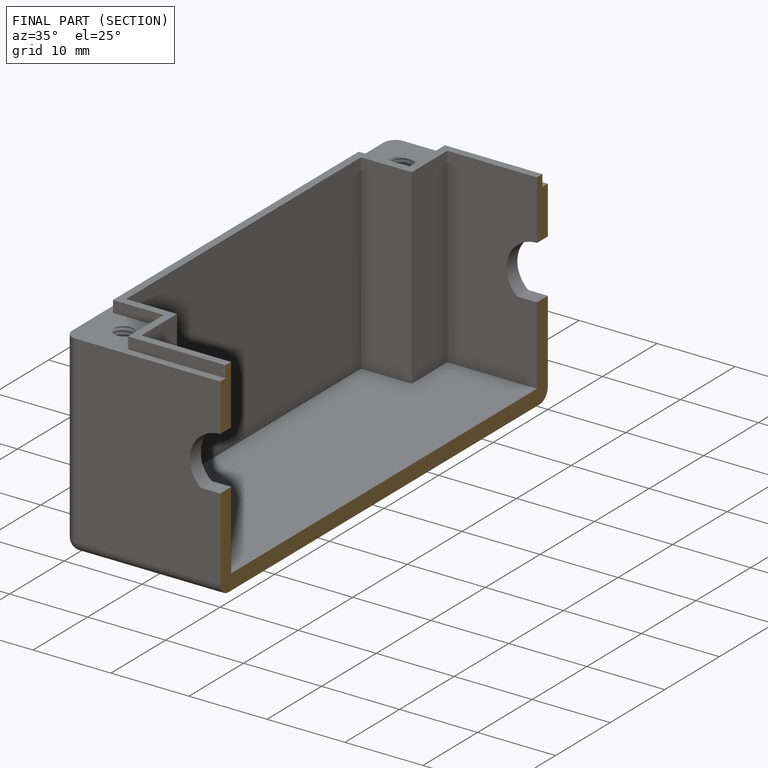
[diagram: finished part — half-section view (interior)]
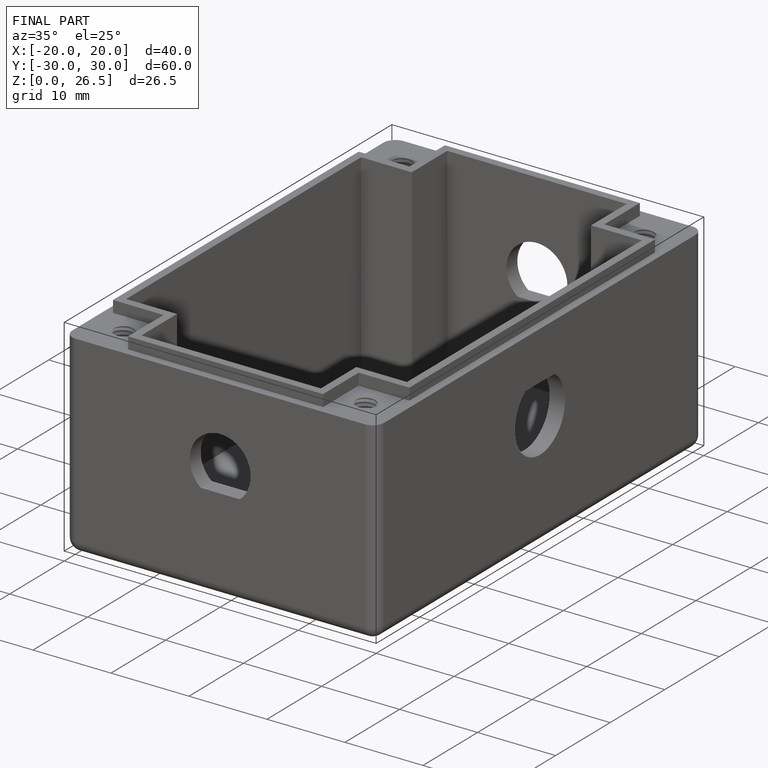
[diagram: finished part — iso view with bounding-box wireframe]
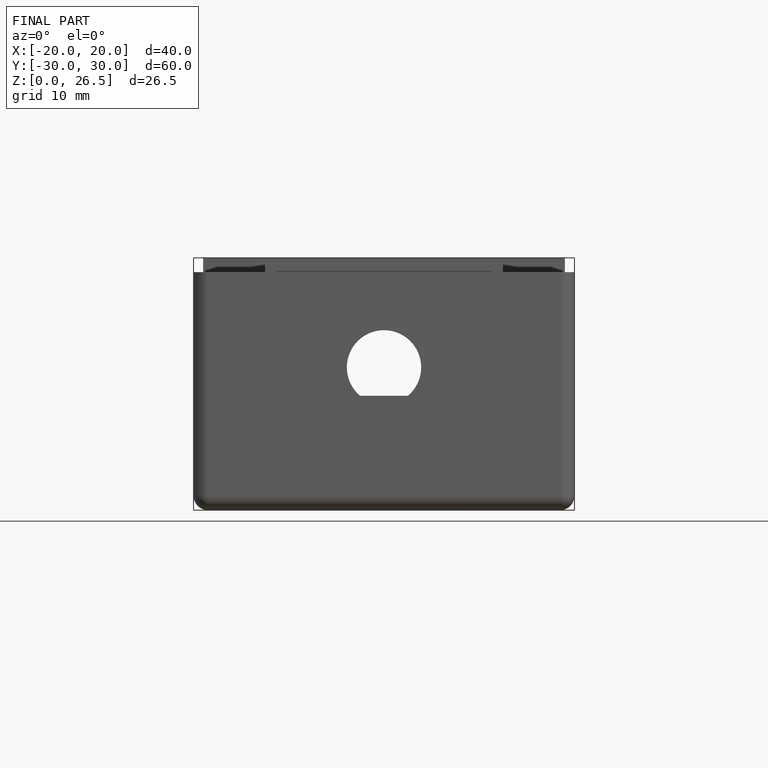
[diagram: finished part — front view with bounding-box wireframe]
